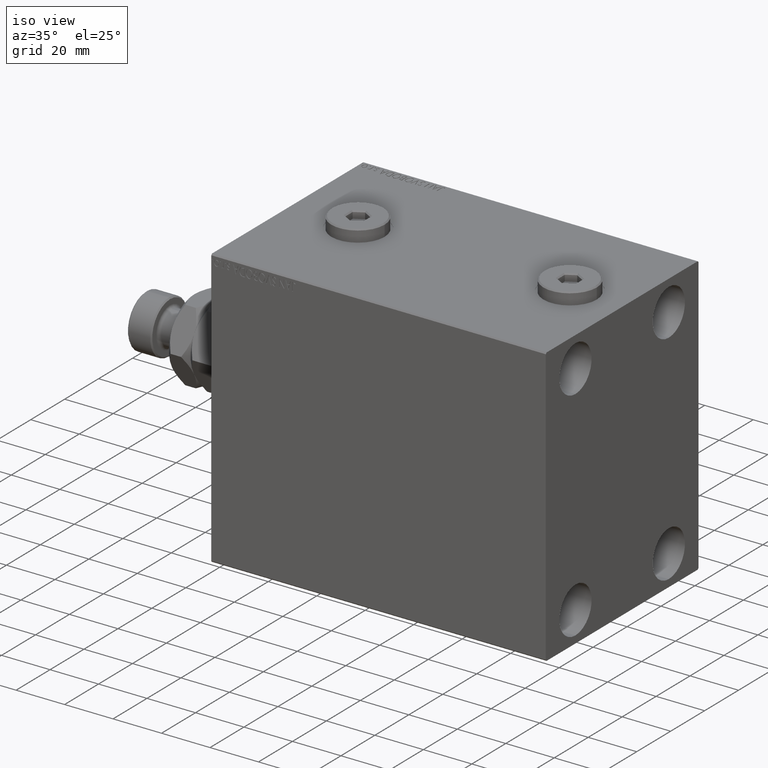
[diagram: clean part render]
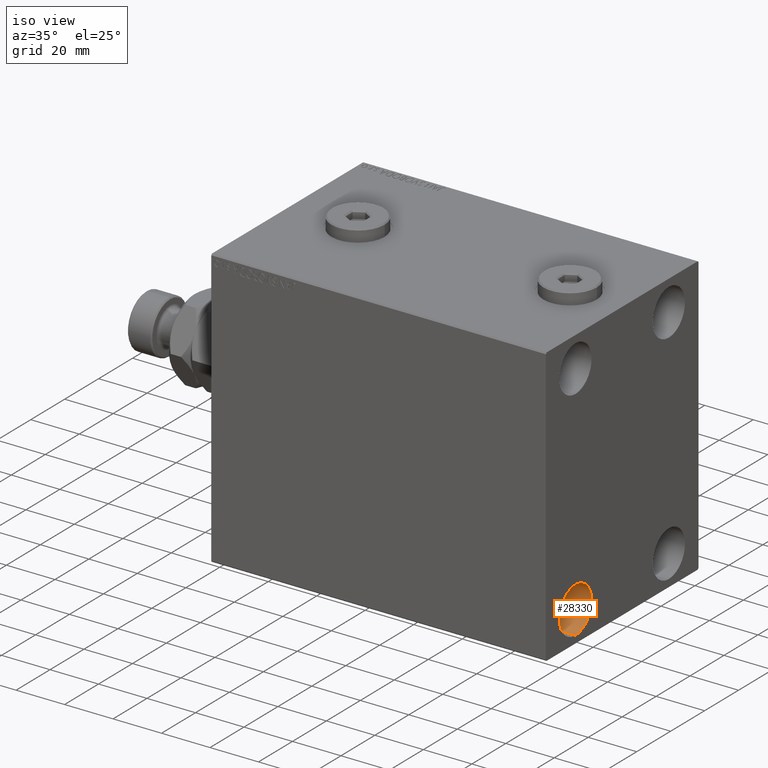
[diagram: same view with one face highlighted and labeled with its STEP entity id]
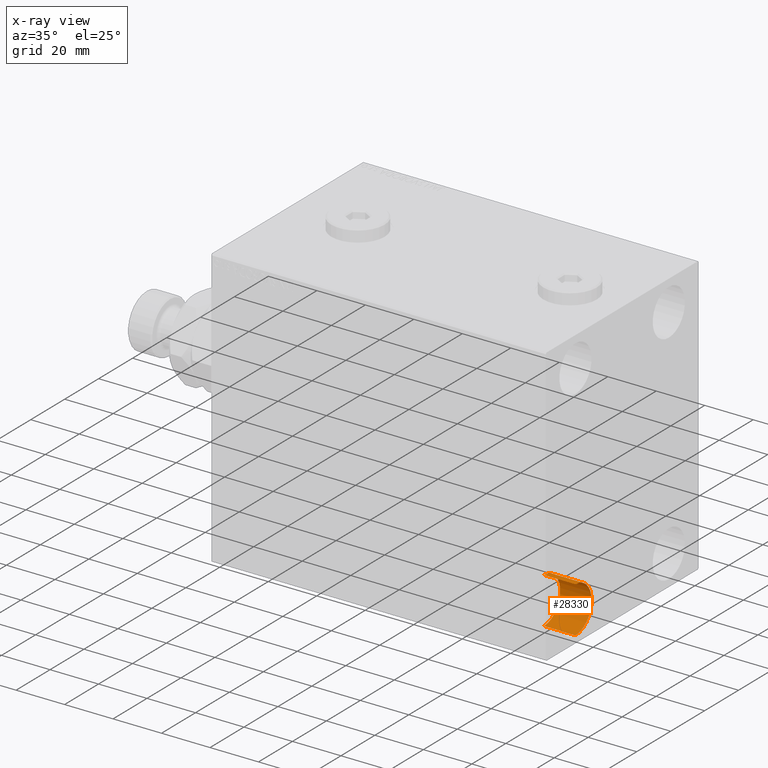
[diagram: x-ray of the same camera — body ghosted, the highlighted face saturated]
A machine part, iso view. The second image highlights one B-rep face of the part: STEP entity #28330.
The next image is the same camera in x-ray: the body ghosted, the highlighted face saturated — about 0% of this face is hidden behind the body in this view.
In plain terms, the highlighted cylindrical surface (edge-blend (fillet) strip) has radius 9.5 mm, axis along (1, 0, 0).
Its self-contained STEP definition (entity closure, byte-faithful):
#782 = ORIENTED_EDGE ( 'NONE', *, *, #3348, .F. ) ;
#1250 = CIRCLE ( 'NONE', #28539, 9.500000000000001776 ) ;
#2489 = AXIS2_PLACEMENT_3D ( 'NONE', #42862, #9842, #10310 ) ;
#3164 = VECTOR ( 'NONE', #8073, 1000.000000000000000 ) ;
#3206 = ORIENTED_EDGE ( 'NONE', *, *, #10746, .T. ) ;
#3348 = EDGE_CURVE ( 'NONE', #43705, #21046, #7596, .T. ) ;
#5139 = CARTESIAN_POINT ( 'NONE',  ( 138.0000000000000000, -27.50000000000000000, -54.49999999999998579 ) ) ;
#7596 = LINE ( 'NONE', #22098, #3164 ) ;
#8073 = DIRECTION ( 'NONE',  ( 1.000000000000000000, -0.000000000000000000, -0.000000000000000000 ) ) ;
#9842 = DIRECTION ( 'NONE',  ( -1.000000000000000000, -0.000000000000000000, -0.000000000000000000 ) ) ;
#10310 = DIRECTION ( 'NONE',  ( 0.000000000000000000, 0.000000000000000000, 1.000000000000000000 ) ) ;
#10746 = EDGE_CURVE ( 'NONE', #43705, #46441, #21456, .T. ) ;
#11989 = AXIS2_PLACEMENT_3D ( 'NONE', #27872, #42607, #17429 ) ;
#12205 = ORIENTED_EDGE ( 'NONE', *, *, #32587, .T. ) ;
#14392 = VECTOR ( 'NONE', #16702, 1000.000000000000000 ) ;
#15925 = EDGE_CURVE ( 'NONE', #21046, #43838, #1250, .T. ) ;
#16109 = DIRECTION ( 'NONE',  ( 0.000000000000000000, 0.000000000000000000, 1.000000000000000000 ) ) ;
#16702 = DIRECTION ( 'NONE',  ( 1.000000000000000000, -0.000000000000000000, -0.000000000000000000 ) ) ;
#17429 = DIRECTION ( 'NONE',  ( 0.000000000000000000, 0.000000000000000000, -1.000000000000000000 ) ) ;
#19809 = CARTESIAN_POINT ( 'NONE',  ( 125.0000000000000000, -27.50000000000000000, -54.49999999999998579 ) ) ;
#21046 = VERTEX_POINT ( 'NONE', #35233 ) ;
#21456 = CIRCLE ( 'NONE', #2489, 9.500000000000001776 ) ;
#22098 = CARTESIAN_POINT ( 'NONE',  ( 125.0000000000000000, -27.50000000000000000, -35.49999999999998579 ) ) ;
#24292 = LINE ( 'NONE', #19809, #14392 ) ;
#24552 = FACE_OUTER_BOUND ( 'NONE', #34672, .T. ) ;
#26798 = DIRECTION ( 'NONE',  ( -1.000000000000000000, -0.000000000000000000, -0.000000000000000000 ) ) ;
#26822 = CARTESIAN_POINT ( 'NONE',  ( 125.0000000000000000, -27.50000000000000000, -54.49999999999998579 ) ) ;
#27872 = CARTESIAN_POINT ( 'NONE',  ( 125.0000000000000000, -27.50000000000000000, -44.99999999999998579 ) ) ;
#28099 = CYLINDRICAL_SURFACE ( 'NONE', #11989, 9.500000000000001776 ) ;
#28330 = ADVANCED_FACE ( 'NONE', ( #24552 ), #28099, .F. ) ;
#28539 = AXIS2_PLACEMENT_3D ( 'NONE', #41521, #26798, #16109 ) ;
#31567 = ORIENTED_EDGE ( 'NONE', *, *, #15925, .F. ) ;
#32587 = EDGE_CURVE ( 'NONE', #46441, #43838, #24292, .T. ) ;
#34672 = EDGE_LOOP ( 'NONE', ( #782, #3206, #12205, #31567 ) ) ;
#35233 = CARTESIAN_POINT ( 'NONE',  ( 138.0000000000000000, -27.50000000000000000, -35.49999999999998579 ) ) ;
#37223 = CARTESIAN_POINT ( 'NONE',  ( 125.0000000000000000, -27.50000000000000000, -35.49999999999998579 ) ) ;
#41521 = CARTESIAN_POINT ( 'NONE',  ( 138.0000000000000000, -27.50000000000000000, -44.99999999999998579 ) ) ;
#42607 = DIRECTION ( 'NONE',  ( 1.000000000000000000, -0.000000000000000000, -0.000000000000000000 ) ) ;
#42862 = CARTESIAN_POINT ( 'NONE',  ( 125.0000000000000000, -27.50000000000000000, -44.99999999999998579 ) ) ;
#43705 = VERTEX_POINT ( 'NONE', #37223 ) ;
#43838 = VERTEX_POINT ( 'NONE', #5139 ) ;
#46441 = VERTEX_POINT ( 'NONE', #26822 ) ;